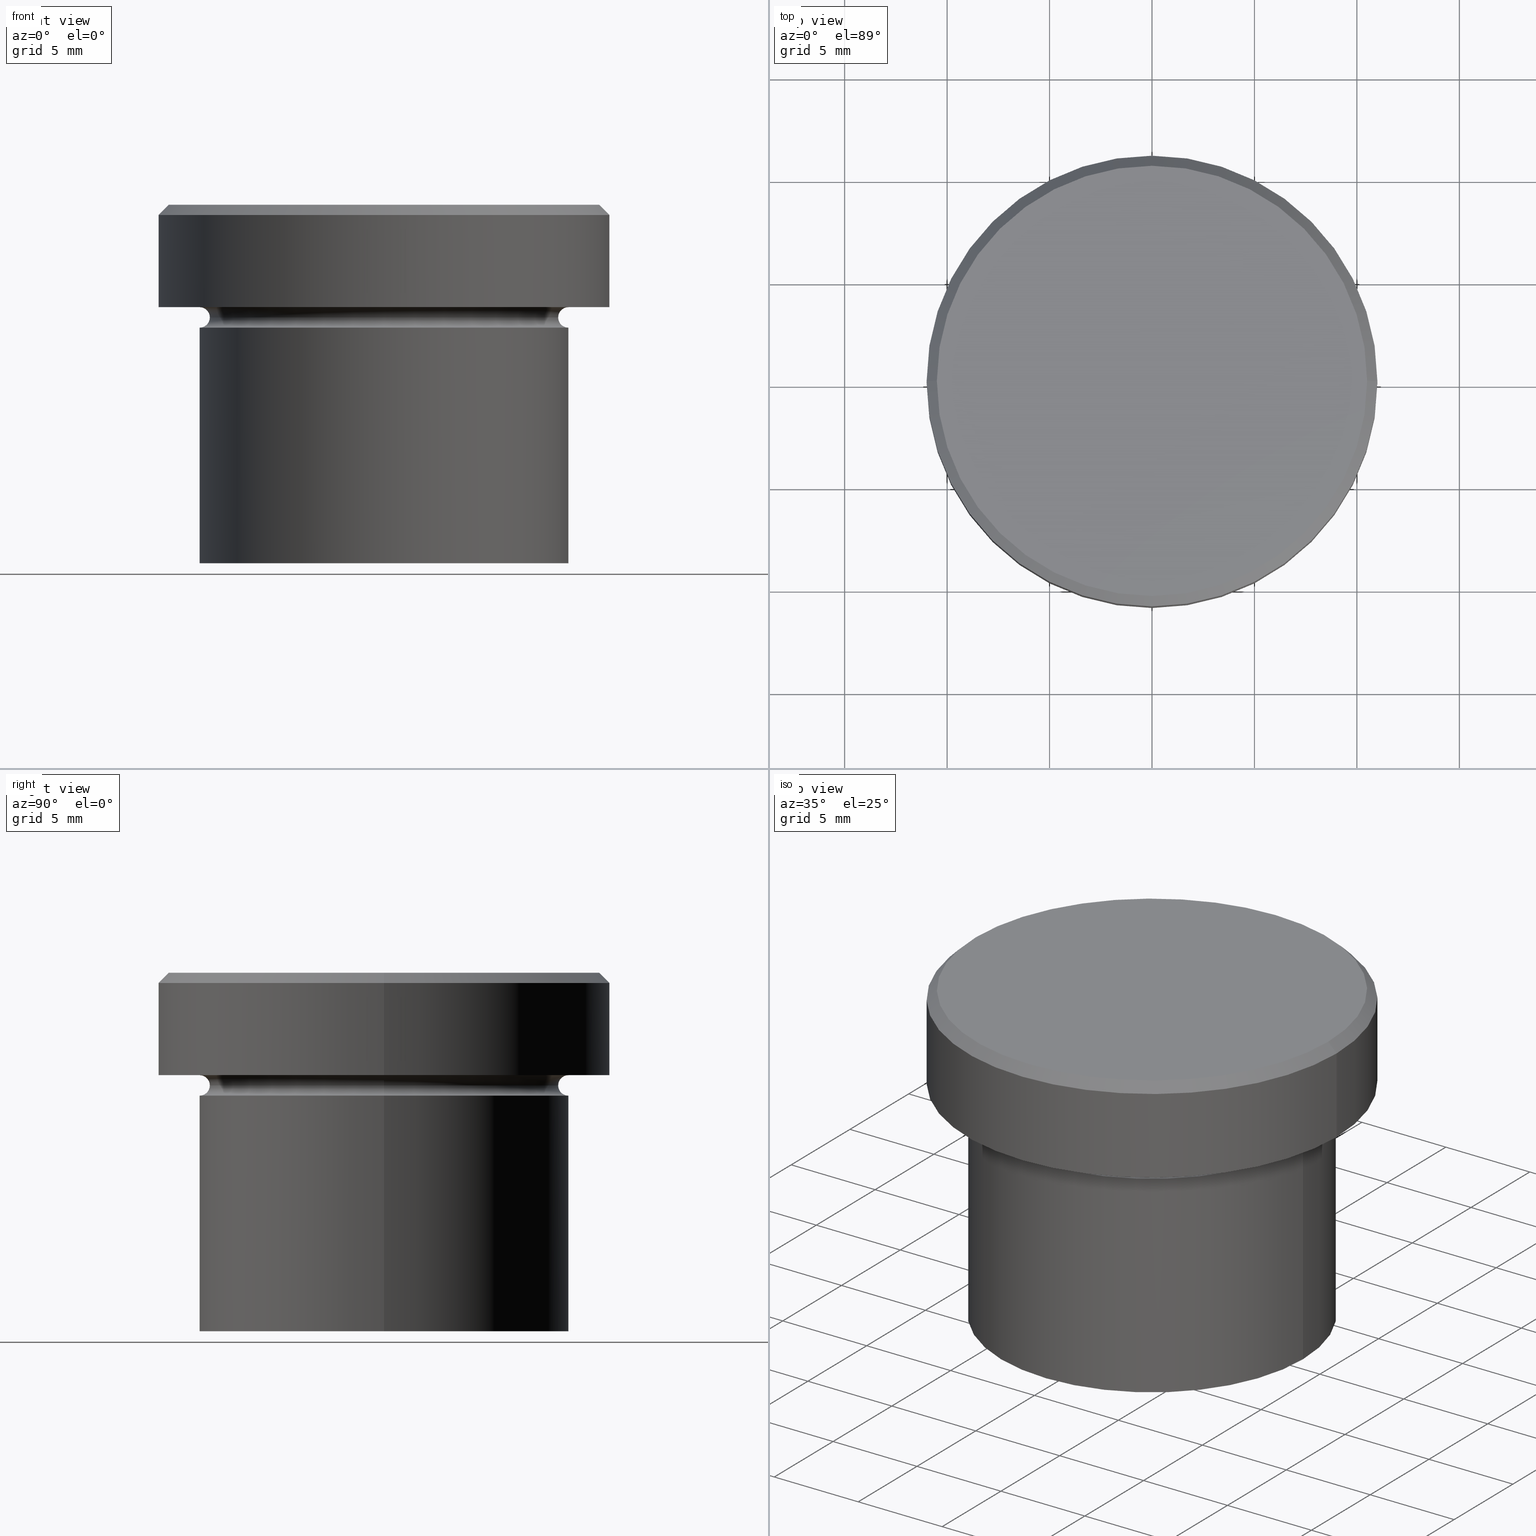
[diagram: canonical four-view strip — front | top / right | iso, engineering-drawing reading convention]
A machine part, canonical four-view strip (front | top / right | iso — engineering-drawing reading convention). The complete STEP part file that produces these views, byte-faithful:
ISO-10303-21;
HEADER;
FILE_DESCRIPTION (( 'STEP AP203' ),
    '1' );
FILE_NAME ('0188.STEP',
    '2024-01-02T23:01:37',
    ( '' ),
    ( '' ),
    'SwSTEP 2.0',
    'SolidWorks 2019',
    '' );
FILE_SCHEMA (( 'CONFIG_CONTROL_DESIGN' ));
ENDSEC;

DATA;
#1 = EDGE_CURVE ( 'NONE', #28, #246, #155, .T. ) ;
#2 = AXIS2_PLACEMENT_3D ( 'NONE', #208, #265, #95 ) ;
#3 = FACE_OUTER_BOUND ( 'NONE', #89, .T. ) ;
#4 = VERTEX_POINT ( 'NONE', #103 ) ;
#5 = PLANE ( 'NONE',  #144 ) ;
#6 = EDGE_LOOP ( 'NONE', ( #274, #325, #255, #159 ) ) ;
#7 = APPROVAL_DATE_TIME ( #9, #78 ) ;
#8 = DIRECTION ( 'NONE',  ( 0.000000000000000000, 0.000000000000000000, -1.000000000000000000 ) ) ;
#9 = DATE_AND_TIME ( #258, #210 ) ;
#10 = CARTESIAN_POINT ( 'NONE',  ( 0.000000000000000000, 0.000000000000000000, -5.000000000000000000 ) ) ;
#11 = LINE ( 'NONE', #332, #178 ) ;
#12 = PRODUCT_RELATED_PRODUCT_CATEGORY ( 'detail', '', ( #372 ) ) ;
#13 = ADVANCED_BREP_SHAPE_REPRESENTATION ( '0188', ( #360, #340 ), #53 ) ;
#14 = ORGANIZATION ( 'NEUR�EN�', 'NEUR�EN�', '' ) ;
#15 = PERSON_AND_ORGANIZATION_ROLE ( 'design_owner' ) ;
#16 = ORIENTED_EDGE ( 'NONE', *, *, #173, .F. ) ;
#17 = CIRCLE ( 'NONE', #352, 0.5000000000000004441 ) ;
#18 = DIRECTION ( 'NONE',  ( -0.000000000000000000, -0.000000000000000000, 1.000000000000000000 ) ) ;
#19 = CARTESIAN_POINT ( 'NONE',  ( 0.000000000000000000, 0.000000000000000000, -6.000000000000000000 ) ) ;
#20 = DIRECTION ( 'NONE',  ( 1.000000000000000000, 0.000000000000000000, 0.000000000000000000 ) ) ;
#21 = DIRECTION ( 'NONE',  ( 1.000000000000000000, 0.000000000000000000, 0.000000000000000000 ) ) ;
#22 = APPROVAL ( #224, 'NEUR�EN�' ) ;
#23 = AXIS2_PLACEMENT_3D ( 'NONE', #50, #200, #113 ) ;
#24 = APPROVAL_ROLE ( '' ) ;
#25 = EDGE_LOOP ( 'NONE', ( #302, #327, #312, #38 ) ) ;
#26 = FACE_OUTER_BOUND ( 'NONE', #407, .T. ) ;
#27 = CARTESIAN_POINT ( 'NONE',  ( -10.50000000000001243, 0.000000000000000000, 0.000000000000000000 ) ) ;
#28 = VERTEX_POINT ( 'NONE', #135 ) ;
#29 = DIRECTION ( 'NONE',  ( 0.000000000000000000, 0.000000000000000000, -1.000000000000000000 ) ) ;
#30 = SHAPE_DEFINITION_REPRESENTATION ( #395, #13 ) ;
#31 = CARTESIAN_POINT ( 'NONE',  ( 0.000000000000000000, 0.000000000000000000, 0.000000000000000000 ) ) ;
#32 = CARTESIAN_POINT ( 'NONE',  ( 0.000000000000000000, 0.000000000000000000, 0.000000000000000000 ) ) ;
#33 = ORIENTED_EDGE ( 'NONE', *, *, #1, .F. ) ;
#34 = EDGE_CURVE ( 'NONE', #240, #166, #203, .T. ) ;
#35 = ORIENTED_EDGE ( 'NONE', *, *, #230, .F. ) ;
#36 = CIRCLE ( 'NONE', #237, 8.499999999999998224 ) ;
#37 = CARTESIAN_POINT ( 'NONE',  ( 8.499999999999998224, 0.000000000000000000, -5.500000000000000000 ) ) ;
#38 = ORIENTED_EDGE ( 'NONE', *, *, #397, .F. ) ;
#39 = ORIENTED_EDGE ( 'NONE', *, *, #34, .T. ) ;
#40 = APPLICATION_PROTOCOL_DEFINITION ( 'international standard', 'config_control_design', 1994, #307 ) ;
#41 = DIRECTION ( 'NONE',  ( -0.000000000000000000, -0.000000000000000000, 1.000000000000000000 ) ) ;
#42 = CIRCLE ( 'NONE', #266, 9.000000000000000000 ) ;
#43 = DIRECTION ( 'NONE',  ( 1.000000000000000000, 0.000000000000000000, 0.000000000000000000 ) ) ;
#44 = CARTESIAN_POINT ( 'NONE',  ( -9.000000000000000000, 1.102182119232617714E-15, -17.50000000000000000 ) ) ;
#45 = DIRECTION ( 'NONE',  ( -1.000000000000000000, 1.224646799147353454E-16, 0.000000000000000000 ) ) ;
#46 = EDGE_CURVE ( 'NONE', #4, #249, #234, .T. ) ;
#47 = CALENDAR_DATE ( 2024, 3, 1 ) ;
#48 = DIRECTION ( 'NONE',  ( -0.000000000000000000, -0.000000000000000000, 1.000000000000000000 ) ) ;
#49 = CIRCLE ( 'NONE', #76, 10.50000000000001243 ) ;
#50 = CARTESIAN_POINT ( 'NONE',  ( 0.000000000000000000, 0.000000000000000000, -0.4999999999999882871 ) ) ;
#51 = CIRCLE ( 'NONE', #278, 11.00000000000000000 ) ;
#52 = ORIENTED_EDGE ( 'NONE', *, *, #273, .T. ) ;
#53 =( GEOMETRIC_REPRESENTATION_CONTEXT ( 3 ) GLOBAL_UNCERTAINTY_ASSIGNED_CONTEXT ( ( #235 ) ) GLOBAL_UNIT_ASSIGNED_CONTEXT ( ( #356, #390, #218 ) ) REPRESENTATION_CONTEXT ( 'NONE', 'WORKASPACE' ) );
#54 = CARTESIAN_POINT ( 'NONE',  ( 0.000000000000000000, 0.000000000000000000, 0.000000000000000000 ) ) ;
#55 = ADVANCED_FACE ( 'NONE', ( #209 ), #301, .T. ) ;
#56 = DIRECTION ( 'NONE',  ( -1.000000000000000000, 0.000000000000000000, 0.000000000000000000 ) ) ;
#57 = ORIENTED_EDGE ( 'NONE', *, *, #247, .F. ) ;
#58 = DIRECTION ( 'NONE',  ( 0.000000000000000000, -0.000000000000000000, 1.000000000000000000 ) ) ;
#59 = ORIENTED_EDGE ( 'NONE', *, *, #263, .F. ) ;
#60 = TOROIDAL_SURFACE ( 'NONE', #213, 9.000000000000000000, 0.5000000000000000000 ) ;
#61 = DIRECTION ( 'NONE',  ( 0.000000000000000000, 0.000000000000000000, -1.000000000000000000 ) ) ;
#62 = CIRCLE ( 'NONE', #294, 11.00000000000000178 ) ;
#63 = DIRECTION ( 'NONE',  ( -0.000000000000000000, -0.000000000000000000, 1.000000000000000000 ) ) ;
#64 = EDGE_CURVE ( 'NONE', #99, #121, #289, .T. ) ;
#65 = DIRECTION ( 'NONE',  ( 0.000000000000000000, 0.000000000000000000, -1.000000000000000000 ) ) ;
#66 = CARTESIAN_POINT ( 'NONE',  ( -9.000000000000000000, 0.000000000000000000, -5.500000000000000000 ) ) ;
#67 = ADVANCED_FACE ( 'NONE', ( #3 ), #88, .T. ) ;
#68 = AXIS2_PLACEMENT_3D ( 'NONE', #359, #251, #69 ) ;
#69 = DIRECTION ( 'NONE',  ( 1.000000000000000000, 0.000000000000000000, 0.000000000000000000 ) ) ;
#70 = ORIENTED_EDGE ( 'NONE', *, *, #140, .T. ) ;
#71 = ORIENTED_EDGE ( 'NONE', *, *, #64, .F. ) ;
#72 = DIRECTION ( 'NONE',  ( 1.000000000000000000, 0.000000000000000000, 0.000000000000000000 ) ) ;
#73 = DIRECTION ( 'NONE',  ( 0.000000000000000000, 0.000000000000000000, 1.000000000000000000 ) ) ;
#74 = AXIS2_PLACEMENT_3D ( 'NONE', #93, #58, #183 ) ;
#75 = DIRECTION ( 'NONE',  ( -0.000000000000000000, -0.000000000000000000, 1.000000000000000000 ) ) ;
#76 = AXIS2_PLACEMENT_3D ( 'NONE', #31, #320, #160 ) ;
#77 = SECURITY_CLASSIFICATION_LEVEL ( 'unclassified' ) ;
#78 = APPROVAL ( #83, 'NEUR�EN�' ) ;
#79 = DIRECTION ( 'NONE',  ( 0.000000000000000000, 0.000000000000000000, -1.000000000000000000 ) ) ;
#80 = AXIS2_PLACEMENT_3D ( 'NONE', #253, #106, #21 ) ;
#81 = CARTESIAN_POINT ( 'NONE',  ( 0.000000000000000000, 0.000000000000000000, 0.000000000000000000 ) ) ;
#82 = ADVANCED_FACE ( 'NONE', ( #351 ), #357, .T. ) ;
#83 = APPROVAL_STATUS ( 'not_yet_approved' ) ;
#84 = DIRECTION ( 'NONE',  ( 0.7071067811865474617, 8.659560562354932858E-17, -0.7071067811865474617 ) ) ;
#85 = EDGE_LOOP ( 'NONE', ( #108, #39, #70, #283 ) ) ;
#86 = DIRECTION ( 'NONE',  ( 1.000000000000000000, 0.000000000000000000, 0.000000000000000000 ) ) ;
#87 = DESIGN_CONTEXT ( 'detailed design', #307, 'design' ) ;
#88 = CONICAL_SURFACE ( 'NONE', #185, 10.50000000000001243, 0.7853981633974482790 ) ;
#89 = EDGE_LOOP ( 'NONE', ( #184, #211, #35, #16 ) ) ;
#90 = DIRECTION ( 'NONE',  ( -0.000000000000000000, -0.000000000000000000, 1.000000000000000000 ) ) ;
#91 = ORIENTED_EDGE ( 'NONE', *, *, #391, .F. ) ;
#92 = CARTESIAN_POINT ( 'NONE',  ( 0.000000000000000000, 0.000000000000000000, -5.000000000000000000 ) ) ;
#93 = CARTESIAN_POINT ( 'NONE',  ( 0.000000000000000000, 0.000000000000000000, 0.000000000000000000 ) ) ;
#94 = ADVANCED_FACE ( 'NONE', ( #137 ), #162, .T. ) ;
#95 = DIRECTION ( 'NONE',  ( -1.000000000000000000, 0.000000000000000000, 0.000000000000000000 ) ) ;
#96 = CC_DESIGN_PERSON_AND_ORGANIZATION_ASSIGNMENT ( #101, #15, ( #372 ) ) ;
#97 = PRODUCT_DEFINITION_FORMATION_WITH_SPECIFIED_SOURCE ( 'LIBOVOLN�', '', #372, .NOT_KNOWN. ) ;
#98 = CARTESIAN_POINT ( 'NONE',  ( -11.00000000000000178, 1.347111479062088602E-15, -0.4999999999999882871 ) ) ;
#99 = VERTEX_POINT ( 'NONE', #37 ) ;
#100 = DIRECTION ( 'NONE',  ( 0.000000000000000000, 0.000000000000000000, -1.000000000000000000 ) ) ;
#101 = PERSON_AND_ORGANIZATION ( #379, #14 ) ;
#102 = CARTESIAN_POINT ( 'NONE',  ( 0.000000000000000000, 0.000000000000000000, 0.000000000000000000 ) ) ;
#103 = CARTESIAN_POINT ( 'NONE',  ( 10.50000000000001243, 1.316495309083405604E-15, 0.000000000000000000 ) ) ;
#104 = AXIS2_PLACEMENT_3D ( 'NONE', #232, #79, #398 ) ;
#105 = CARTESIAN_POINT ( 'NONE',  ( -10.50000000000001243, 0.000000000000000000, 0.000000000000000000 ) ) ;
#106 = DIRECTION ( 'NONE',  ( -0.000000000000000000, -0.000000000000000000, 1.000000000000000000 ) ) ;
#107 = CARTESIAN_POINT ( 'NONE',  ( 0.000000000000000000, 0.000000000000000000, -5.500000000000000000 ) ) ;
#108 = ORIENTED_EDGE ( 'NONE', *, *, #261, .F. ) ;
#109 = VERTEX_POINT ( 'NONE', #98 ) ;
#110 = CIRCLE ( 'NONE', #330, 10.50000000000001243 ) ;
#111 = FACE_OUTER_BOUND ( 'NONE', #290, .T. ) ;
#112 = PERSON_AND_ORGANIZATION_ROLE ( 'classification_officer' ) ;
#113 = DIRECTION ( 'NONE',  ( 1.000000000000000000, 0.000000000000000000, 0.000000000000000000 ) ) ;
#114 = PERSON_AND_ORGANIZATION ( #379, #14 ) ;
#115 = AXIS2_PLACEMENT_3D ( 'NONE', #107, #349, #72 ) ;
#116 = LINE ( 'NONE', #347, #400 ) ;
#117 = EDGE_CURVE ( 'NONE', #121, #28, #311, .T. ) ;
#118 = CIRCLE ( 'NONE', #338, 9.000000000000000000 ) ;
#119 = ORIENTED_EDGE ( 'NONE', *, *, #397, .T. ) ;
#120 = FACE_OUTER_BOUND ( 'NONE', #132, .T. ) ;
#121 = VERTEX_POINT ( 'NONE', #248 ) ;
#122 = DIRECTION ( 'NONE',  ( 1.000000000000000000, 0.000000000000000000, 0.000000000000000000 ) ) ;
#123 = ADVANCED_FACE ( 'NONE', ( #318 ), #348, .T. ) ;
#124 = ORIENTED_EDGE ( 'NONE', *, *, #233, .F. ) ;
#125 = DIRECTION ( 'NONE',  ( -0.000000000000000000, -0.000000000000000000, 1.000000000000000000 ) ) ;
#126 = VERTEX_POINT ( 'NONE', #322 ) ;
#127 = AXIS2_PLACEMENT_3D ( 'NONE', #267, #369, #86 ) ;
#128 = LOCAL_TIME ( 0, 1, 37.00000000000000000, #403 ) ;
#129 = CARTESIAN_POINT ( 'NONE',  ( 0.000000000000000000, 0.000000000000000000, -17.50000000000000000 ) ) ;
#130 = LINE ( 'NONE', #131, #194 ) ;
#131 = CARTESIAN_POINT ( 'NONE',  ( 9.000000000000000000, 0.000000000000000000, 0.000000000000000000 ) ) ;
#132 = EDGE_LOOP ( 'NONE', ( #368, #52 ) ) ;
#133 = APPROVAL_ROLE ( '' ) ;
#134 = CC_DESIGN_DATE_AND_TIME_ASSIGNMENT ( #147, #172, ( #149 ) ) ;
#135 = CARTESIAN_POINT ( 'NONE',  ( -9.000000000000000000, 0.000000000000000000, -4.999999999999999112 ) ) ;
#136 = VECTOR ( 'NONE', #41, 1000.000000000000000 ) ;
#137 = FACE_OUTER_BOUND ( 'NONE', #25, .T. ) ;
#138 = ORIENTED_EDGE ( 'NONE', *, *, #375, .T. ) ;
#139 = ADVANCED_FACE ( 'NONE', ( #409 ), #254, .F. ) ;
#140 = EDGE_CURVE ( 'NONE', #166, #346, #130, .T. ) ;
#141 = DIRECTION ( 'NONE',  ( -1.224646799147353207E-16, 1.000000000000000000, 0.000000000000000000 ) ) ;
#142 = EDGE_LOOP ( 'NONE', ( #57, #180, #197, #344 ) ) ;
#143 = ADVANCED_FACE ( 'NONE', ( #282, #382 ), #5, .T. ) ;
#144 = AXIS2_PLACEMENT_3D ( 'NONE', #277, #100, #195 ) ;
#145 = CC_DESIGN_APPROVAL ( #78, ( #97 ) ) ;
#146 = DIRECTION ( 'NONE',  ( 1.000000000000000000, 0.000000000000000000, 0.000000000000000000 ) ) ;
#147 = DATE_AND_TIME ( #47, #380 ) ;
#148 = CALENDAR_DATE ( 2024, 3, 1 ) ;
#149 = SECURITY_CLASSIFICATION ( '', '', #77 ) ;
#150 = CARTESIAN_POINT ( 'NONE',  ( 0.000000000000000000, 0.000000000000000000, -5.500000000000000000 ) ) ;
#151 = EDGE_LOOP ( 'NONE', ( #186, #217, #214, #381 ) ) ;
#152 = CC_DESIGN_DATE_AND_TIME_ASSIGNMENT ( #176, #297, ( #215 ) ) ;
#153 = CARTESIAN_POINT ( 'NONE',  ( 0.000000000000000000, 9.000000000000000000, -17.50000000000000000 ) ) ;
#154 = EDGE_CURVE ( 'NONE', #99, #346, #156, .T. ) ;
#155 = CIRCLE ( 'NONE', #242, 9.000000000000000000 ) ;
#156 = CIRCLE ( 'NONE', #220, 0.5000000000000004441 ) ;
#157 = EDGE_LOOP ( 'NONE', ( #376, #383, #33, #269 ) ) ;
#158 = EDGE_LOOP ( 'NONE', ( #91, #355 ) ) ;
#159 = ORIENTED_EDGE ( 'NONE', *, *, #140, .F. ) ;
#160 = DIRECTION ( 'NONE',  ( 1.000000000000000000, 0.000000000000000000, 0.000000000000000000 ) ) ;
#161 = DIRECTION ( 'NONE',  ( 1.000000000000000000, 0.000000000000000000, 0.000000000000000000 ) ) ;
#162 = CONICAL_SURFACE ( 'NONE', #373, 10.50000000000001243, 0.7853981633974482790 ) ;
#163 = DIRECTION ( 'NONE',  ( -1.000000000000000000, 0.000000000000000000, 0.000000000000000000 ) ) ;
#164 = CC_DESIGN_PERSON_AND_ORGANIZATION_ASSIGNMENT ( #336, #394, ( #97 ) ) ;
#165 = DIRECTION ( 'NONE',  ( -0.000000000000000000, -0.000000000000000000, 1.000000000000000000 ) ) ;
#166 = VERTEX_POINT ( 'NONE', #329 ) ;
#167 = PERSON_AND_ORGANIZATION ( #379, #14 ) ;
#168 = EDGE_CURVE ( 'NONE', #389, #249, #288, .T. ) ;
#169 = DIRECTION ( 'NONE',  ( -0.7071067811865474617, 0.000000000000000000, -0.7071067811865474617 ) ) ;
#170 = AXIS2_PLACEMENT_3D ( 'NONE', #181, #90, #377 ) ;
#171 = APPROVAL_PERSON_ORGANIZATION ( #167, #22, #133 ) ;
#172 = DATE_TIME_ROLE ( 'classification_date' ) ;
#173 = EDGE_CURVE ( 'NONE', #308, #109, #387, .T. ) ;
#174 = TOROIDAL_SURFACE ( 'NONE', #104, 9.000000000000000000, 0.5000000000000000000 ) ;
#175 = DIRECTION ( 'NONE',  ( 1.000000000000000000, 0.000000000000000000, 0.000000000000000000 ) ) ;
#176 = DATE_AND_TIME ( #148, #279 ) ;
#177 = DIRECTION ( 'NONE',  ( -0.000000000000000000, -0.000000000000000000, 1.000000000000000000 ) ) ;
#178 = VECTOR ( 'NONE', #75, 1000.000000000000000 ) ;
#179 = EDGE_CURVE ( 'NONE', #404, #109, #11, .T. ) ;
#180 = ORIENTED_EDGE ( 'NONE', *, *, #233, .T. ) ;
#181 = CARTESIAN_POINT ( 'NONE',  ( 0.000000000000000000, 0.000000000000000000, 0.000000000000000000 ) ) ;
#182 = EDGE_LOOP ( 'NONE', ( #319, #138 ) ) ;
#183 = DIRECTION ( 'NONE',  ( 1.000000000000000000, 0.000000000000000000, 0.000000000000000000 ) ) ;
#184 = ORIENTED_EDGE ( 'NONE', *, *, #273, .F. ) ;
#185 = AXIS2_PLACEMENT_3D ( 'NONE', #219, #221, #163 ) ;
#186 = ORIENTED_EDGE ( 'NONE', *, *, #391, .T. ) ;
#187 = DIRECTION ( 'NONE',  ( -1.000000000000000000, 0.000000000000000000, -0.000000000000000000 ) ) ;
#188 = CARTESIAN_POINT ( 'NONE',  ( 0.000000000000000000, 0.000000000000000000, -5.500000000000000000 ) ) ;
#189 = DIRECTION ( 'NONE',  ( -0.000000000000000000, -0.000000000000000000, 1.000000000000000000 ) ) ;
#190 = CARTESIAN_POINT ( 'NONE',  ( 0.000000000000000000, 0.000000000000000000, -5.500000000000000000 ) ) ;
#191 = DIRECTION ( 'NONE',  ( 1.000000000000000000, 0.000000000000000000, 0.000000000000000000 ) ) ;
#192 = EDGE_CURVE ( 'NONE', #126, #346, #199, .T. ) ;
#193 = EDGE_LOOP ( 'NONE', ( #271, #286, #304, #119 ) ) ;
#194 = VECTOR ( 'NONE', #125, 1000.000000000000000 ) ;
#195 = DIRECTION ( 'NONE',  ( -1.000000000000000000, 0.000000000000000000, -0.000000000000000000 ) ) ;
#196 = CARTESIAN_POINT ( 'NONE',  ( 11.00000000000000178, 0.000000000000000000, 0.000000000000000000 ) ) ;
#197 = ORIENTED_EDGE ( 'NONE', *, *, #192, .T. ) ;
#198 = APPROVAL_DATE_TIME ( #358, #22 ) ;
#199 = CIRCLE ( 'NONE', #231, 9.000000000000000000 ) ;
#200 = DIRECTION ( 'NONE',  ( 0.000000000000000000, 0.000000000000000000, -1.000000000000000000 ) ) ;
#201 = APPLICATION_CONTEXT ( 'configuration controlled 3d designs of mechanical parts and assemblies' ) ;
#202 = EDGE_CURVE ( 'NONE', #99, #246, #17, .T. ) ;
#203 = CIRCLE ( 'NONE', #80, 9.000000000000000000 ) ;
#204 = AXIS2_PLACEMENT_3D ( 'NONE', #188, #241, #43 ) ;
#205 = DIRECTION ( 'NONE',  ( 1.224646799147353207E-16, 1.000000000000000000, 0.000000000000000000 ) ) ;
#206 = COORDINATED_UNIVERSAL_TIME_OFFSET ( 1, 0, .AHEAD. ) ;
#207 = APPROVAL_ROLE ( '' ) ;
#208 = CARTESIAN_POINT ( 'NONE',  ( 0.000000000000000000, 0.000000000000000000, -5.000000000000000000 ) ) ;
#209 = FACE_OUTER_BOUND ( 'NONE', #6, .T. ) ;
#210 = LOCAL_TIME ( 0, 1, 37.00000000000000000, #363 ) ;
#211 = ORIENTED_EDGE ( 'NONE', *, *, #46, .T. ) ;
#212 = ORIENTED_EDGE ( 'NONE', *, *, #154, .T. ) ;
#213 = AXIS2_PLACEMENT_3D ( 'NONE', #150, #61, #56 ) ;
#214 = ORIENTED_EDGE ( 'NONE', *, *, #230, .T. ) ;
#215 = PRODUCT_DEFINITION ( 'NEZN�M�', '', #97, #87 ) ;
#216 = DIRECTION ( 'NONE',  ( -1.000000000000000000, 0.000000000000000000, 0.000000000000000000 ) ) ;
#217 = ORIENTED_EDGE ( 'NONE', *, *, #179, .T. ) ;
#218 =( NAMED_UNIT ( * ) SI_UNIT ( $, .STERADIAN. ) SOLID_ANGLE_UNIT ( ) );
#219 = CARTESIAN_POINT ( 'NONE',  ( 0.000000000000000000, 0.000000000000000000, 0.000000000000000000 ) ) ;
#220 = AXIS2_PLACEMENT_3D ( 'NONE', #326, #285, #8 ) ;
#221 = DIRECTION ( 'NONE',  ( 0.000000000000000000, 0.000000000000000000, -1.000000000000000000 ) ) ;
#222 = CALENDAR_DATE ( 2024, 3, 1 ) ;
#223 = DIRECTION ( 'NONE',  ( 0.000000000000000000, 0.000000000000000000, -1.000000000000000000 ) ) ;
#224 = APPROVAL_STATUS ( 'not_yet_approved' ) ;
#225 = AXIS2_PLACEMENT_3D ( 'NONE', #153, #65, #187 ) ;
#226 = CARTESIAN_POINT ( 'NONE',  ( -9.000000000000000000, 1.102182119232617714E-15, -5.500000000000000000 ) ) ;
#227 = CARTESIAN_POINT ( 'NONE',  ( 9.000000000000000000, 1.102182119232617714E-15, -4.999999999999999112 ) ) ;
#228 = ADVANCED_FACE ( 'NONE', ( #111 ), #174, .F. ) ;
#229 = PERSON_AND_ORGANIZATION_ROLE ( 'creator' ) ;
#230 = EDGE_CURVE ( 'NONE', #109, #249, #345, .T. ) ;
#231 = AXIS2_PLACEMENT_3D ( 'NONE', #19, #262, #256 ) ;
#232 = CARTESIAN_POINT ( 'NONE',  ( 0.000000000000000000, 0.000000000000000000, -5.500000000000000000 ) ) ;
#233 = EDGE_CURVE ( 'NONE', #121, #126, #245, .T. ) ;
#234 = LINE ( 'NONE', #341, #309 ) ;
#235 = UNCERTAINTY_MEASURE_WITH_UNIT (LENGTH_MEASURE( 1.000000000000000082E-05 ), #356, 'distance_accuracy_value', 'NONE');
#236 = DIRECTION ( 'NONE',  ( -0.000000000000000000, -0.000000000000000000, 1.000000000000000000 ) ) ;
#237 = AXIS2_PLACEMENT_3D ( 'NONE', #334, #48, #175 ) ;
#238 = EDGE_LOOP ( 'NONE', ( #124, #71, #212, #402 ) ) ;
#239 = CC_DESIGN_PERSON_AND_ORGANIZATION_ASSIGNMENT ( #331, #112, ( #149 ) ) ;
#240 = VERTEX_POINT ( 'NONE', #44 ) ;
#241 = DIRECTION ( 'NONE',  ( -0.000000000000000000, -0.000000000000000000, 1.000000000000000000 ) ) ;
#242 = AXIS2_PLACEMENT_3D ( 'NONE', #10, #252, #385 ) ;
#243 = DIRECTION ( 'NONE',  ( -0.000000000000000000, -0.000000000000000000, 1.000000000000000000 ) ) ;
#244 = VECTOR ( 'NONE', #169, 1000.000000000000114 ) ;
#245 = CIRCLE ( 'NONE', #366, 0.5000000000000004441 ) ;
#246 = VERTEX_POINT ( 'NONE', #227 ) ;
#247 = EDGE_CURVE ( 'NONE', #121, #99, #36, .T. ) ;
#248 = CARTESIAN_POINT ( 'NONE',  ( -8.499999999999998224, 1.071565949253933927E-15, -5.500000000000000000 ) ) ;
#249 = VERTEX_POINT ( 'NONE', #295 ) ;
#250 = MECHANICAL_CONTEXT ( 'NONE', #201, 'mechanical' ) ;
#251 = DIRECTION ( 'NONE',  ( -0.000000000000000000, -0.000000000000000000, 1.000000000000000000 ) ) ;
#252 = DIRECTION ( 'NONE',  ( -0.000000000000000000, -0.000000000000000000, 1.000000000000000000 ) ) ;
#253 = CARTESIAN_POINT ( 'NONE',  ( 0.000000000000000000, 0.000000000000000000, -17.50000000000000000 ) ) ;
#254 = TOROIDAL_SURFACE ( 'NONE', #378, 9.000000000000000000, 0.5000000000000000000 ) ;
#255 = ORIENTED_EDGE ( 'NONE', *, *, #342, .F. ) ;
#256 = DIRECTION ( 'NONE',  ( 1.000000000000000000, 0.000000000000000000, 0.000000000000000000 ) ) ;
#257 = DIRECTION ( 'NONE',  ( 1.000000000000000000, 0.000000000000000000, 0.000000000000000000 ) ) ;
#258 = CALENDAR_DATE ( 2024, 3, 1 ) ;
#259 = ADVANCED_FACE ( 'NONE', ( #260 ), #293, .F. ) ;
#260 = FACE_OUTER_BOUND ( 'NONE', #142, .T. ) ;
#261 = EDGE_CURVE ( 'NONE', #240, #126, #116, .T. ) ;
#262 = DIRECTION ( 'NONE',  ( -0.000000000000000000, -0.000000000000000000, 1.000000000000000000 ) ) ;
#263 = EDGE_CURVE ( 'NONE', #166, #240, #118, .T. ) ;
#264 = PERSON_AND_ORGANIZATION ( #379, #14 ) ;
#265 = DIRECTION ( 'NONE',  ( -0.000000000000000000, -0.000000000000000000, 1.000000000000000000 ) ) ;
#266 = AXIS2_PLACEMENT_3D ( 'NONE', #339, #18, #146 ) ;
#267 = CARTESIAN_POINT ( 'NONE',  ( 0.000000000000000000, 0.000000000000000000, -5.000000000000000000 ) ) ;
#268 = ORIENTED_EDGE ( 'NONE', *, *, #202, .F. ) ;
#269 = ORIENTED_EDGE ( 'NONE', *, *, #117, .F. ) ;
#270 = CALENDAR_DATE ( 2024, 3, 1 ) ;
#271 = ORIENTED_EDGE ( 'NONE', *, *, #179, .F. ) ;
#272 = CYLINDRICAL_SURFACE ( 'NONE', #170, 11.00000000000000178 ) ;
#273 = EDGE_CURVE ( 'NONE', #4, #308, #49, .T. ) ;
#274 = ORIENTED_EDGE ( 'NONE', *, *, #263, .T. ) ;
#275 = DIRECTION ( 'NONE',  ( -0.000000000000000000, -1.000000000000000000, -0.000000000000000000 ) ) ;
#276 = CC_DESIGN_PERSON_AND_ORGANIZATION_ASSIGNMENT ( #114, #229, ( #97 ) ) ;
#277 = CARTESIAN_POINT ( 'NONE',  ( 0.000000000000000000, 11.00000000000000000, -5.000000000000000000 ) ) ;
#278 = AXIS2_PLACEMENT_3D ( 'NONE', #92, #408, #191 ) ;
#279 = LOCAL_TIME ( 0, 1, 37.00000000000000000, #206 ) ;
#280 = ORIENTED_EDGE ( 'NONE', *, *, #64, .T. ) ;
#281 = FACE_OUTER_BOUND ( 'NONE', #193, .T. ) ;
#282 = FACE_BOUND ( 'NONE', #182, .T. ) ;
#283 = ORIENTED_EDGE ( 'NONE', *, *, #192, .F. ) ;
#284 = APPROVAL_DATE_TIME ( #314, #328 ) ;
#285 = DIRECTION ( 'NONE',  ( 0.000000000000000000, -1.000000000000000000, 0.000000000000000000 ) ) ;
#286 = ORIENTED_EDGE ( 'NONE', *, *, #317, .T. ) ;
#287 = COORDINATED_UNIVERSAL_TIME_OFFSET ( 1, 0, .AHEAD. ) ;
#288 = LINE ( 'NONE', #196, #136 ) ;
#289 = CIRCLE ( 'NONE', #115, 8.499999999999998224 ) ;
#290 = EDGE_LOOP ( 'NONE', ( #268, #280, #370, #337 ) ) ;
#291 = CARTESIAN_POINT ( 'NONE',  ( 0.000000000000000000, 0.000000000000000000, 0.000000000000000000 ) ) ;
#292 = ADVANCED_FACE ( 'NONE', ( #281 ), #272, .T. ) ;
#293 = TOROIDAL_SURFACE ( 'NONE', #204, 9.000000000000000000, 0.5000000000000000000 ) ;
#294 = AXIS2_PLACEMENT_3D ( 'NONE', #313, #29, #122 ) ;
#295 = CARTESIAN_POINT ( 'NONE',  ( 11.00000000000000178, 0.000000000000000000, -0.4999999999999882871 ) ) ;
#296 = DIRECTION ( 'NONE',  ( -1.000000000000000000, -1.224646799147353454E-16, 0.000000000000000000 ) ) ;
#297 = DATE_TIME_ROLE ( 'creation_date' ) ;
#298 = CIRCLE ( 'NONE', #127, 11.00000000000000000 ) ;
#299 = CC_DESIGN_SECURITY_CLASSIFICATION ( #149, ( #97 ) ) ;
#300 = APPROVAL_PERSON_ORGANIZATION ( #306, #328, #24 ) ;
#301 = CYLINDRICAL_SURFACE ( 'NONE', #406, 9.000000000000000000 ) ;
#302 = ORIENTED_EDGE ( 'NONE', *, *, #46, .F. ) ;
#303 = DIRECTION ( 'NONE',  ( 1.000000000000000000, 0.000000000000000000, 0.000000000000000000 ) ) ;
#304 = ORIENTED_EDGE ( 'NONE', *, *, #168, .T. ) ;
#305 = ADVANCED_FACE ( 'NONE', ( #315 ), #60, .F. ) ;
#306 = PERSON_AND_ORGANIZATION ( #379, #14 ) ;
#307 = APPLICATION_CONTEXT ( 'configuration controlled 3d designs of mechanical parts and assemblies' ) ;
#308 = VERTEX_POINT ( 'NONE', #27 ) ;
#309 = VECTOR ( 'NONE', #84, 1000.000000000000114 ) ;
#310 = ADVANCED_FACE ( 'NONE', ( #120 ), #374, .T. ) ;
#311 = CIRCLE ( 'NONE', #323, 0.5000000000000004441 ) ;
#312 = ORIENTED_EDGE ( 'NONE', *, *, #173, .T. ) ;
#313 = CARTESIAN_POINT ( 'NONE',  ( 0.000000000000000000, 0.000000000000000000, -0.4999999999999882871 ) ) ;
#314 = DATE_AND_TIME ( #270, #128 ) ;
#315 = FACE_OUTER_BOUND ( 'NONE', #157, .T. ) ;
#316 = DIRECTION ( 'NONE',  ( 1.000000000000000000, 0.000000000000000000, 0.000000000000000000 ) ) ;
#317 = EDGE_CURVE ( 'NONE', #404, #389, #298, .T. ) ;
#318 = FACE_OUTER_BOUND ( 'NONE', #85, .T. ) ;
#319 = ORIENTED_EDGE ( 'NONE', *, *, #1, .T. ) ;
#320 = DIRECTION ( 'NONE',  ( -0.000000000000000000, -0.000000000000000000, 1.000000000000000000 ) ) ;
#321 = DIRECTION ( 'NONE',  ( 1.000000000000000000, 0.000000000000000000, 0.000000000000000000 ) ) ;
#322 = CARTESIAN_POINT ( 'NONE',  ( -9.000000000000000000, 1.102182119232617714E-15, -6.000000000000000000 ) ) ;
#323 = AXIS2_PLACEMENT_3D ( 'NONE', #66, #275, #388 ) ;
#324 = CC_DESIGN_APPROVAL ( #328, ( #149 ) ) ;
#325 = ORIENTED_EDGE ( 'NONE', *, *, #261, .T. ) ;
#326 = CARTESIAN_POINT ( 'NONE',  ( 9.000000000000000000, 0.000000000000000000, -5.500000000000000000 ) ) ;
#327 = ORIENTED_EDGE ( 'NONE', *, *, #354, .F. ) ;
#328 = APPROVAL ( #367, 'NEUR�EN�' ) ;
#329 = CARTESIAN_POINT ( 'NONE',  ( 9.000000000000000000, 0.000000000000000000, -17.50000000000000000 ) ) ;
#330 = AXIS2_PLACEMENT_3D ( 'NONE', #81, #177, #20 ) ;
#331 = PERSON_AND_ORGANIZATION ( #379, #14 ) ;
#332 = CARTESIAN_POINT ( 'NONE',  ( -11.00000000000000178, 1.347111479062088602E-15, 0.000000000000000000 ) ) ;
#333 = COORDINATED_UNIVERSAL_TIME_OFFSET ( 1, 0, .AHEAD. ) ;
#334 = CARTESIAN_POINT ( 'NONE',  ( 0.000000000000000000, 0.000000000000000000, -5.500000000000000000 ) ) ;
#335 = CLOSED_SHELL ( 'NONE', ( #67, #305, #259, #55, #82, #384, #310, #292, #143, #123, #139, #228, #94 ) ) ;
#336 = PERSON_AND_ORGANIZATION ( #379, #14 ) ;
#337 = ORIENTED_EDGE ( 'NONE', *, *, #375, .F. ) ;
#338 = AXIS2_PLACEMENT_3D ( 'NONE', #129, #189, #316 ) ;
#339 = CARTESIAN_POINT ( 'NONE',  ( 0.000000000000000000, 0.000000000000000000, -6.000000000000000000 ) ) ;
#340 = AXIS2_PLACEMENT_3D ( 'NONE', #291, #73, #257 ) ;
#341 = CARTESIAN_POINT ( 'NONE',  ( 10.50000000000001243, 1.285879139104722408E-15, 0.000000000000000000 ) ) ;
#342 = EDGE_CURVE ( 'NONE', #346, #126, #42, .T. ) ;
#343 = ORIENTED_EDGE ( 'NONE', *, *, #34, .F. ) ;
#344 = ORIENTED_EDGE ( 'NONE', *, *, #154, .F. ) ;
#345 = CIRCLE ( 'NONE', #23, 11.00000000000000178 ) ;
#346 = VERTEX_POINT ( 'NONE', #365 ) ;
#347 = CARTESIAN_POINT ( 'NONE',  ( -9.000000000000000000, 1.102182119232617714E-15, 0.000000000000000000 ) ) ;
#348 = CYLINDRICAL_SURFACE ( 'NONE', #68, 9.000000000000000000 ) ;
#349 = DIRECTION ( 'NONE',  ( -0.000000000000000000, -0.000000000000000000, 1.000000000000000000 ) ) ;
#350 = APPLICATION_PROTOCOL_DEFINITION ( 'international standard', 'config_control_design', 1994, #201 ) ;
#351 = FACE_OUTER_BOUND ( 'NONE', #151, .T. ) ;
#352 = AXIS2_PLACEMENT_3D ( 'NONE', #396, #141, #296 ) ;
#353 = APPROVAL_PERSON_ORGANIZATION ( #264, #78, #207 ) ;
#354 = EDGE_CURVE ( 'NONE', #308, #4, #110, .T. ) ;
#355 = ORIENTED_EDGE ( 'NONE', *, *, #317, .F. ) ;
#356 =( LENGTH_UNIT ( ) NAMED_UNIT ( * ) SI_UNIT ( .MILLI., .METRE. ) );
#357 = CYLINDRICAL_SURFACE ( 'NONE', #392, 11.00000000000000178 ) ;
#358 = DATE_AND_TIME ( #222, #393 ) ;
#359 = CARTESIAN_POINT ( 'NONE',  ( 0.000000000000000000, 0.000000000000000000, 0.000000000000000000 ) ) ;
#360 = MANIFOLD_SOLID_BREP ( 'Zkosen�1', #335 ) ;
#361 = CC_DESIGN_PERSON_AND_ORGANIZATION_ASSIGNMENT ( #399, #364, ( #215 ) ) ;
#362 = CIRCLE ( 'NONE', #2, 9.000000000000000000 ) ;
#363 = COORDINATED_UNIVERSAL_TIME_OFFSET ( 1, 0, .AHEAD. ) ;
#364 = PERSON_AND_ORGANIZATION_ROLE ( 'creator' ) ;
#365 = CARTESIAN_POINT ( 'NONE',  ( 9.000000000000000000, 0.000000000000000000, -6.000000000000000000 ) ) ;
#366 = AXIS2_PLACEMENT_3D ( 'NONE', #226, #205, #45 ) ;
#367 = APPROVAL_STATUS ( 'not_yet_approved' ) ;
#368 = ORIENTED_EDGE ( 'NONE', *, *, #354, .T. ) ;
#369 = DIRECTION ( 'NONE',  ( -0.000000000000000000, -0.000000000000000000, 1.000000000000000000 ) ) ;
#370 = ORIENTED_EDGE ( 'NONE', *, *, #117, .T. ) ;
#371 = CARTESIAN_POINT ( 'NONE',  ( 11.00000000000000000, 0.000000000000000000, -5.000000000000000000 ) ) ;
#372 = PRODUCT ( '0188', '0188', '', ( #250 ) ) ;
#373 = AXIS2_PLACEMENT_3D ( 'NONE', #32, #223, #216 ) ;
#374 = PLANE ( 'NONE',  #74 ) ;
#375 = EDGE_CURVE ( 'NONE', #246, #28, #362, .T. ) ;
#376 = ORIENTED_EDGE ( 'NONE', *, *, #247, .T. ) ;
#377 = DIRECTION ( 'NONE',  ( 1.000000000000000000, 0.000000000000000000, 0.000000000000000000 ) ) ;
#378 = AXIS2_PLACEMENT_3D ( 'NONE', #190, #243, #321 ) ;
#379 = PERSON ( 'NEUR�EN�', 'NEUR�EN�', 'NEUR�EN�', ('NEUR�EN�'), ('NEUR�EN�'), ('NEUR�EN�') ) ;
#380 = LOCAL_TIME ( 0, 1, 37.00000000000000000, #333 ) ;
#381 = ORIENTED_EDGE ( 'NONE', *, *, #168, .F. ) ;
#382 = FACE_OUTER_BOUND ( 'NONE', #158, .T. ) ;
#383 = ORIENTED_EDGE ( 'NONE', *, *, #202, .T. ) ;
#384 = ADVANCED_FACE ( 'NONE', ( #26 ), #405, .T. ) ;
#385 = DIRECTION ( 'NONE',  ( -1.000000000000000000, 0.000000000000000000, 0.000000000000000000 ) ) ;
#386 = CARTESIAN_POINT ( 'NONE',  ( -11.00000000000000000, 1.347111479062088602E-15, -5.000000000000000000 ) ) ;
#387 = LINE ( 'NONE', #105, #244 ) ;
#388 = DIRECTION ( 'NONE',  ( 0.000000000000000000, 0.000000000000000000, -1.000000000000000000 ) ) ;
#389 = VERTEX_POINT ( 'NONE', #371 ) ;
#390 =( NAMED_UNIT ( * ) PLANE_ANGLE_UNIT ( ) SI_UNIT ( $, .RADIAN. ) );
#391 = EDGE_CURVE ( 'NONE', #389, #404, #51, .T. ) ;
#392 = AXIS2_PLACEMENT_3D ( 'NONE', #102, #165, #161 ) ;
#393 = LOCAL_TIME ( 0, 1, 37.00000000000000000, #287 ) ;
#394 = PERSON_AND_ORGANIZATION_ROLE ( 'design_supplier' ) ;
#395 = PRODUCT_DEFINITION_SHAPE ( 'NONE', 'NONE',  #215 ) ;
#396 = CARTESIAN_POINT ( 'NONE',  ( 9.000000000000000000, 1.102182119232617714E-15, -5.500000000000000000 ) ) ;
#397 = EDGE_CURVE ( 'NONE', #249, #109, #62, .T. ) ;
#398 = DIRECTION ( 'NONE',  ( -1.000000000000000000, 0.000000000000000000, 0.000000000000000000 ) ) ;
#399 = PERSON_AND_ORGANIZATION ( #379, #14 ) ;
#400 = VECTOR ( 'NONE', #63, 1000.000000000000000 ) ;
#401 = CC_DESIGN_APPROVAL ( #22, ( #215 ) ) ;
#402 = ORIENTED_EDGE ( 'NONE', *, *, #342, .T. ) ;
#403 = COORDINATED_UNIVERSAL_TIME_OFFSET ( 1, 0, .AHEAD. ) ;
#404 = VERTEX_POINT ( 'NONE', #386 ) ;
#405 = PLANE ( 'NONE',  #225 ) ;
#406 = AXIS2_PLACEMENT_3D ( 'NONE', #54, #236, #303 ) ;
#407 = EDGE_LOOP ( 'NONE', ( #59, #343 ) ) ;
#408 = DIRECTION ( 'NONE',  ( -0.000000000000000000, -0.000000000000000000, 1.000000000000000000 ) ) ;
#409 = FACE_OUTER_BOUND ( 'NONE', #238, .T. ) ;
ENDSEC;
END-ISO-10303-21;
